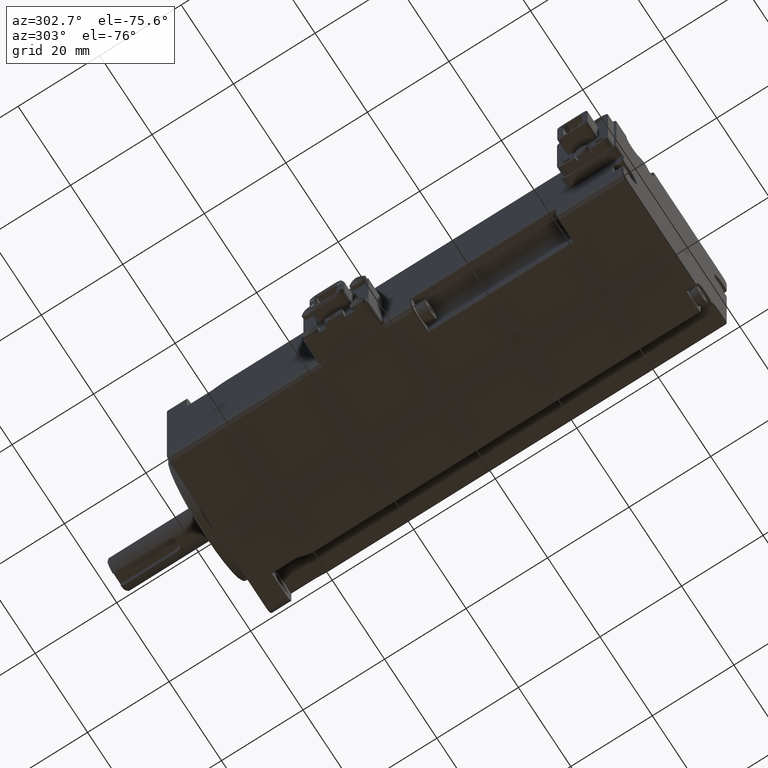
[diagram: clean part render]
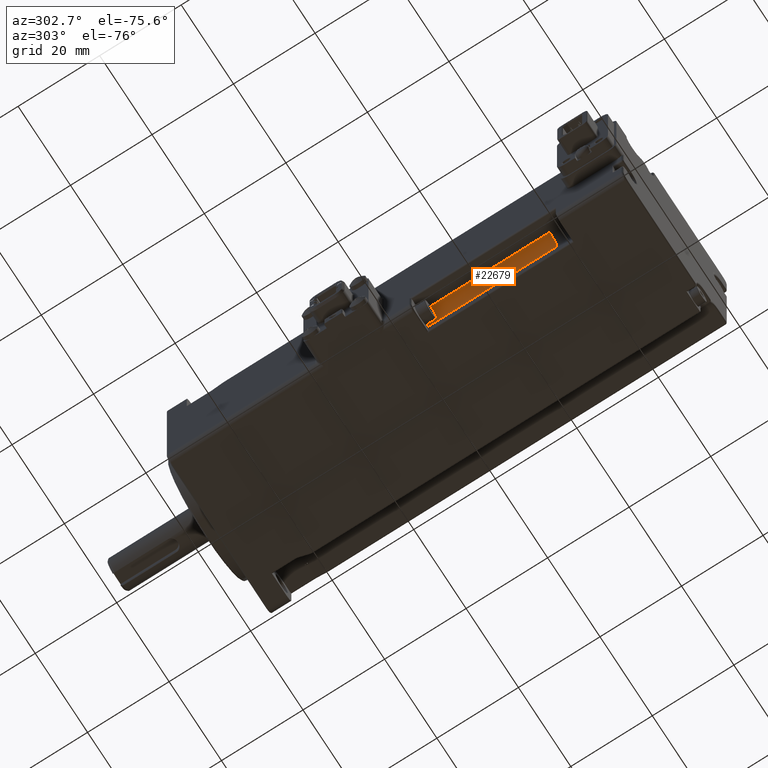
[diagram: same view with one face highlighted and labeled with its STEP entity id]
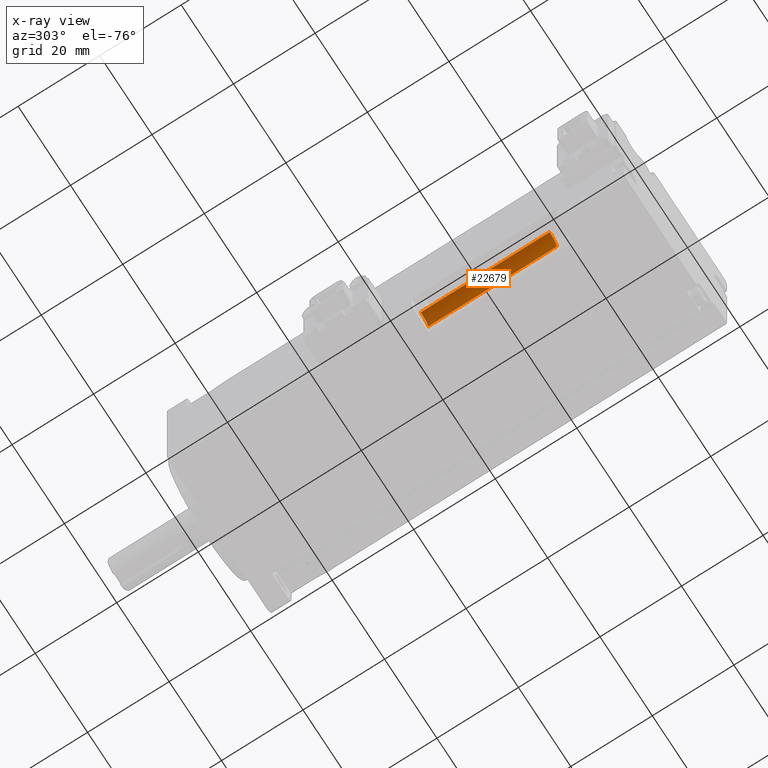
[diagram: x-ray of the same camera — body ghosted, the highlighted face saturated]
A machine part, auxiliary view. The second image highlights one B-rep face of the part: STEP entity #22679.
The next image is the same camera in x-ray: the body ghosted, the highlighted face saturated — about 0% of this face is hidden behind the body in this view.
In plain terms, the highlighted cylindrical surface (edge-blend (fillet) strip) has radius 2.76 mm, axis along (0, 1, -0).
Its self-contained STEP definition (entity closure, byte-faithful):
#485 = VERTEX_POINT ( 'NONE', #7617 ) ;
#2071 = LINE ( 'NONE', #9721, #19678 ) ;
#4515 = DIRECTION ( 'NONE',  ( 4.613964343715449020E-16, 1.000000000000000000, -1.668049390122796326E-15 ) ) ;
#5096 = ORIENTED_EDGE ( 'NONE', *, *, #21871, .T. ) ;
#5114 = EDGE_CURVE ( 'NONE', #485, #10559, #21371, .T. ) ;
#5325 = CARTESIAN_POINT ( 'NONE',  ( -16.26345596729071374, -5.000000000000011546, -13.50345596729039599 ) ) ;
#6391 = CARTESIAN_POINT ( 'NONE',  ( -16.26345596729074927, -51.80000000000001847, -16.26345596729031939 ) ) ;
#6450 = CARTESIAN_POINT ( 'NONE',  ( -13.50345596729074238, -36.60000000000002274, -16.26345596729036558 ) ) ;
#7051 = LINE ( 'NONE', #22350, #24088 ) ;
#7617 = CARTESIAN_POINT ( 'NONE',  ( -16.26345596729072795, -36.60000000000001563, -13.50345596729034270 ) ) ;
#7625 = DIRECTION ( 'NONE',  ( -1.000000000000000000, 0.000000000000000000, 7.542275982507851033E-15 ) ) ;
#7750 = DIRECTION ( 'NONE',  ( 4.613964343715449020E-16, 1.000000000000000000, -1.668049390122796326E-15 ) ) ;
#8754 = VERTEX_POINT ( 'NONE', #20780 ) ;
#9392 = ORIENTED_EDGE ( 'NONE', *, *, #5114, .F. ) ;
#9517 = DIRECTION ( 'NONE',  ( 1.000000000000000000, -3.142614992711606898E-16, -7.542275982507855766E-15 ) ) ;
#9721 = CARTESIAN_POINT ( 'NONE',  ( -16.26345596729073151, -51.80000000000001137, -13.50345596729031783 ) ) ;
#9760 = CARTESIAN_POINT ( 'NONE',  ( -16.26345596729072795, -5.000000000000018652, -16.26345596729039755 ) ) ;
#10559 = VERTEX_POINT ( 'NONE', #6450 ) ;
#12158 = DIRECTION ( 'NONE',  ( 1.000000000000000000, 0.000000000000000000, -7.542275982507855766E-15 ) ) ;
#12819 = DIRECTION ( 'NONE',  ( 4.613964343715449020E-16, 1.000000000000000000, -1.668049390122796326E-15 ) ) ;
#12905 = DIRECTION ( 'NONE',  ( 4.613964343715449020E-16, 1.000000000000000000, -1.668049390122796326E-15 ) ) ;
#14098 = AXIS2_PLACEMENT_3D ( 'NONE', #6391, #4515, #12158 ) ;
#14573 = CIRCLE ( 'NONE', #21787, 2.760000000000000231 ) ;
#14911 = CARTESIAN_POINT ( 'NONE',  ( -16.26345596729074217, -36.60000000000002274, -16.26345596729034426 ) ) ;
#15446 = EDGE_CURVE ( 'NONE', #21131, #8754, #14573, .T. ) ;
#15793 = ORIENTED_EDGE ( 'NONE', *, *, #15446, .T. ) ;
#15984 = DIRECTION ( 'NONE',  ( 4.613964343715449020E-16, 1.000000000000000000, -1.668049390122796326E-15 ) ) ;
#17807 = FACE_OUTER_BOUND ( 'NONE', #22888, .T. ) ;
#19678 = VECTOR ( 'NONE', #15984, 1000.000000000000000 ) ;
#20780 = CARTESIAN_POINT ( 'NONE',  ( -13.50345596729072817, -5.000000000000018652, -16.26345596729041887 ) ) ;
#20970 = AXIS2_PLACEMENT_3D ( 'NONE', #14911, #12905, #7625 ) ;
#21131 = VERTEX_POINT ( 'NONE', #5325 ) ;
#21371 = CIRCLE ( 'NONE', #20970, 2.760000000000002007 ) ;
#21529 = EDGE_CURVE ( 'NONE', #10559, #8754, #7051, .T. ) ;
#21701 = CYLINDRICAL_SURFACE ( 'NONE', #14098, 2.760000000000000231 ) ;
#21787 = AXIS2_PLACEMENT_3D ( 'NONE', #9760, #7750, #9517 ) ;
#21871 = EDGE_CURVE ( 'NONE', #485, #21131, #2071, .T. ) ;
#22350 = CARTESIAN_POINT ( 'NONE',  ( -13.50345596729074771, -51.80000000000001847, -16.26345596729034071 ) ) ;
#22679 = ADVANCED_FACE ( 'NONE', ( #17807 ), #21701, .F. ) ;
#22888 = EDGE_LOOP ( 'NONE', ( #23885, #9392, #5096, #15793 ) ) ;
#23885 = ORIENTED_EDGE ( 'NONE', *, *, #21529, .F. ) ;
#24088 = VECTOR ( 'NONE', #12819, 1000.000000000000000 ) ;